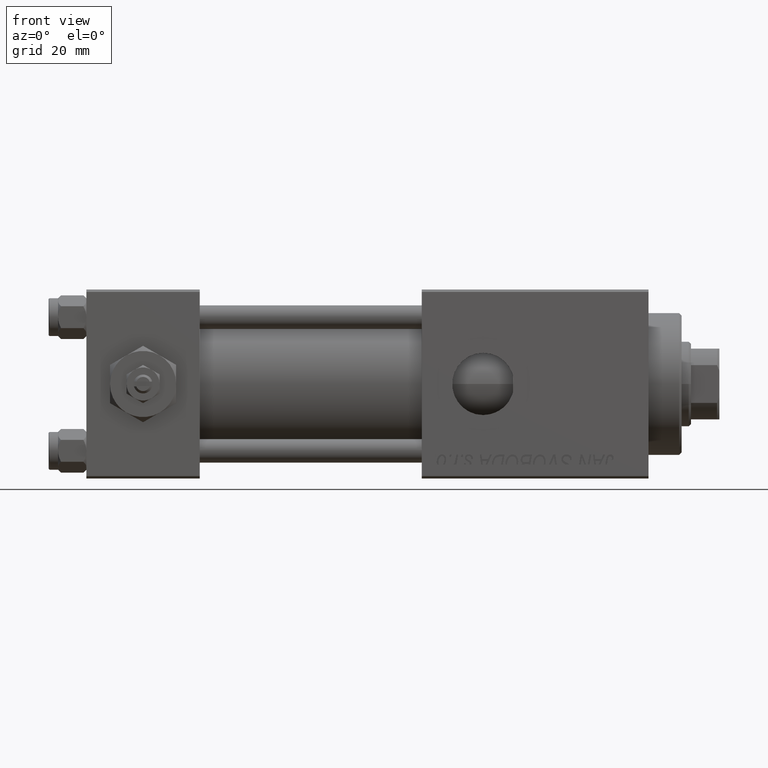
[diagram: clean part render]
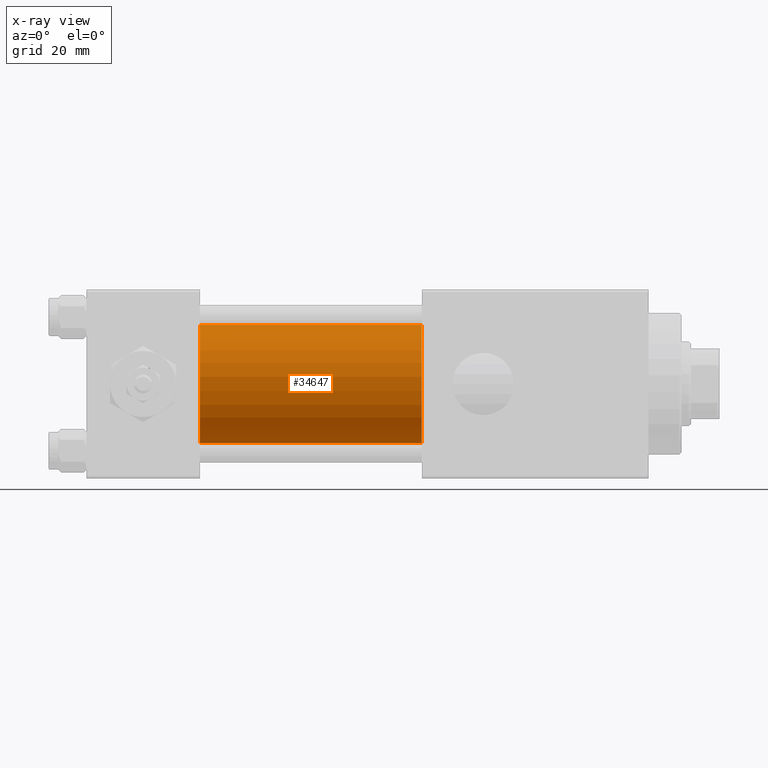
[diagram: x-ray — body ghosted, one internal face saturated and labeled with its STEP entity id]
A machine part, front view, then the same camera in x-ray: the body is ghosted and one INTERNAL B-rep face — a face not visible from any outside direction — is saturated and labeled: STEP entity #34647.
In plain terms, the highlighted cylindrical surface (partial cylindrical patch) has radius 12.5 mm, axis along (-1, -0, -0).
Its self-contained STEP definition (entity closure, byte-faithful):
#55 = AXIS2_PLACEMENT_3D ( 'NONE', #21341, #49941, #49680 ) ;
#5025 = VERTEX_POINT ( 'NONE', #33520 ) ;
#6196 = EDGE_LOOP ( 'NONE', ( #36984, #35758, #39151, #19535 ) ) ;
#7554 = AXIS2_PLACEMENT_3D ( 'NONE', #13657, #25996, #30191 ) ;
#12334 = DIRECTION ( 'NONE',  ( -1.000000000000000000, -0.000000000000000000, -0.000000000000000000 ) ) ;
#13657 = CARTESIAN_POINT ( 'NONE',  ( 24.00000000000000000, -2.602085213965210642E-15, 0.000000000000000000 ) ) ;
#16265 = LINE ( 'NONE', #32273, #51482 ) ;
#17429 = CARTESIAN_POINT ( 'NONE',  ( 71.00000000000001421, -2.602085213965210642E-15, 12.49999999999999645 ) ) ;
#17806 = EDGE_CURVE ( 'NONE', #42235, #45523, #35702, .T. ) ;
#18201 = VECTOR ( 'NONE', #31235, 1000.000000000000000 ) ;
#19403 = CARTESIAN_POINT ( 'NONE',  ( 24.00000000000000000, -1.071276715031019515E-15, -12.49999999999999645 ) ) ;
#19535 = ORIENTED_EDGE ( 'NONE', *, *, #17806, .F. ) ;
#20490 = DIRECTION ( 'NONE',  ( -1.000000000000000000, -0.000000000000000000, -0.000000000000000000 ) ) ;
#21341 = CARTESIAN_POINT ( 'NONE',  ( 71.00000000000001421, -2.602085213965210642E-15, 0.000000000000000000 ) ) ;
#25119 = AXIS2_PLACEMENT_3D ( 'NONE', #45692, #20490, #48838 ) ;
#25477 = CYLINDRICAL_SURFACE ( 'NONE', #25119, 12.49999999999999645 ) ;
#25996 = DIRECTION ( 'NONE',  ( 1.000000000000000000, 0.000000000000000000, 0.000000000000000000 ) ) ;
#26022 = CIRCLE ( 'NONE', #7554, 12.49999999999999645 ) ;
#27320 = CARTESIAN_POINT ( 'NONE',  ( 71.00000000000001421, -2.602085213965210642E-15, 12.49999999999999645 ) ) ;
#28602 = CIRCLE ( 'NONE', #55, 12.49999999999999645 ) ;
#30191 = DIRECTION ( 'NONE',  ( 0.000000000000000000, 0.000000000000000000, -1.000000000000000000 ) ) ;
#31235 = DIRECTION ( 'NONE',  ( -1.000000000000000000, -0.000000000000000000, -0.000000000000000000 ) ) ;
#32273 = CARTESIAN_POINT ( 'NONE',  ( 71.00000000000001421, -1.071276715031019515E-15, -12.49999999999999645 ) ) ;
#33520 = CARTESIAN_POINT ( 'NONE',  ( 71.00000000000001421, -1.071276715031019515E-15, -12.49999999999999645 ) ) ;
#34647 = ADVANCED_FACE ( 'NONE', ( #48588 ), #25477, .F. ) ;
#35702 = LINE ( 'NONE', #27320, #18201 ) ;
#35758 = ORIENTED_EDGE ( 'NONE', *, *, #49457, .T. ) ;
#36984 = ORIENTED_EDGE ( 'NONE', *, *, #38223, .T. ) ;
#37349 = EDGE_CURVE ( 'NONE', #45523, #41400, #26022, .T. ) ;
#38223 = EDGE_CURVE ( 'NONE', #42235, #5025, #28602, .T. ) ;
#39151 = ORIENTED_EDGE ( 'NONE', *, *, #37349, .F. ) ;
#41400 = VERTEX_POINT ( 'NONE', #19403 ) ;
#42235 = VERTEX_POINT ( 'NONE', #17429 ) ;
#45156 = CARTESIAN_POINT ( 'NONE',  ( 24.00000000000000000, -2.602085213965210642E-15, 12.49999999999999645 ) ) ;
#45523 = VERTEX_POINT ( 'NONE', #45156 ) ;
#45692 = CARTESIAN_POINT ( 'NONE',  ( 71.00000000000001421, -2.602085213965210642E-15, 0.000000000000000000 ) ) ;
#48588 = FACE_OUTER_BOUND ( 'NONE', #6196, .T. ) ;
#48838 = DIRECTION ( 'NONE',  ( 0.000000000000000000, 0.000000000000000000, 1.000000000000000000 ) ) ;
#49457 = EDGE_CURVE ( 'NONE', #5025, #41400, #16265, .T. ) ;
#49680 = DIRECTION ( 'NONE',  ( 0.000000000000000000, 0.000000000000000000, -1.000000000000000000 ) ) ;
#49941 = DIRECTION ( 'NONE',  ( 1.000000000000000000, 0.000000000000000000, 0.000000000000000000 ) ) ;
#51482 = VECTOR ( 'NONE', #12334, 1000.000000000000000 ) ;